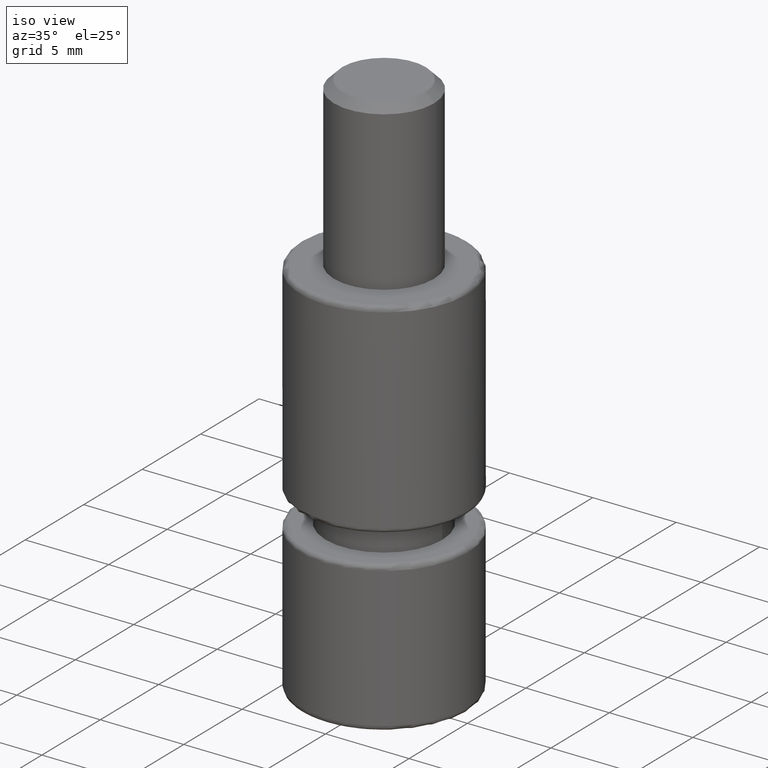
[diagram: clean part render]
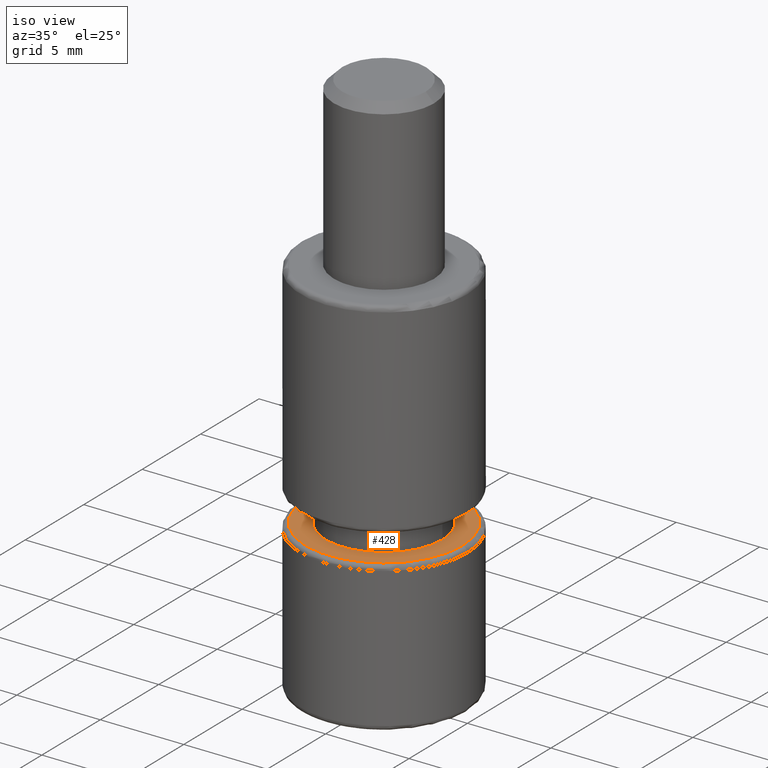
[diagram: same view with one face highlighted and labeled with its STEP entity id]
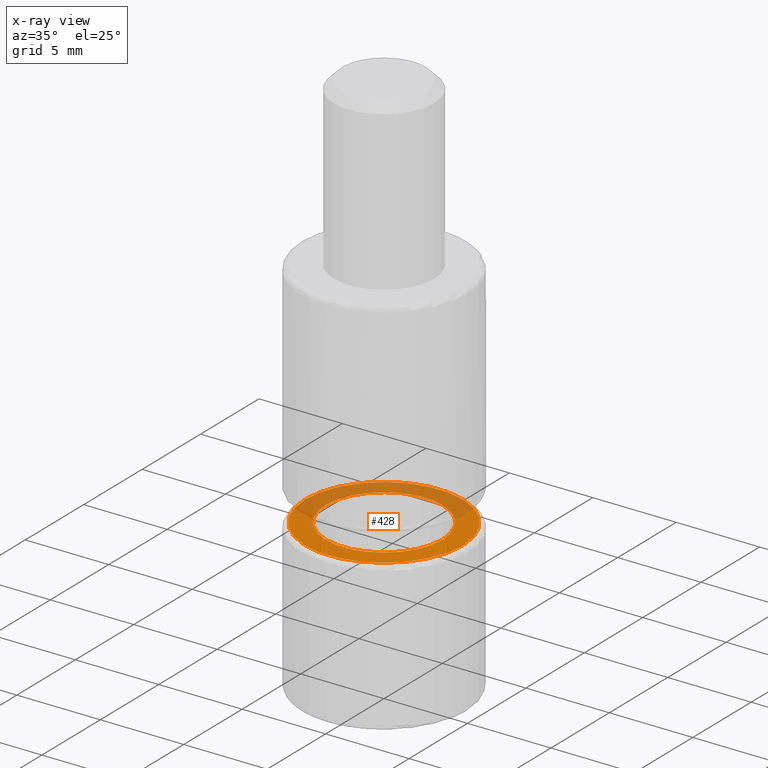
[diagram: x-ray of the same camera — body ghosted, the highlighted face saturated]
A machine part, iso view. The second image highlights one B-rep face of the part: STEP entity #428.
The next image is the same camera in x-ray: the body ghosted, the highlighted face saturated — about 42% of this face is hidden behind the body in this view.
In plain terms, the highlighted planar face has unit normal (0, 0, -1).
Its self-contained STEP definition (entity closure, byte-faithful):
#21=FACE_BOUND('',#102,.T.);
#27=CIRCLE('',#484,4.7);
#28=CIRCLE('',#485,4.7);
#30=CIRCLE('',#488,3.5);
#31=CIRCLE('',#489,3.5);
#54=PLANE('',#487);
#73=FACE_OUTER_BOUND('',#101,.T.);
#101=EDGE_LOOP('',(#334,#335));
#102=EDGE_LOOP('',(#336,#337));
#203=VERTEX_POINT('',#730);
#204=VERTEX_POINT('',#732);
#205=VERTEX_POINT('',#737);
#206=VERTEX_POINT('',#738);
#252=EDGE_CURVE('',#203,#204,#27,.T.);
#253=EDGE_CURVE('',#204,#203,#28,.T.);
#255=EDGE_CURVE('',#205,#206,#30,.T.);
#256=EDGE_CURVE('',#206,#205,#31,.T.);
#334=ORIENTED_EDGE('',*,*,#253,.F.);
#335=ORIENTED_EDGE('',*,*,#252,.F.);
#336=ORIENTED_EDGE('',*,*,#255,.F.);
#337=ORIENTED_EDGE('',*,*,#256,.F.);
#428=ADVANCED_FACE('',(#73,#21),#54,.F.);
#484=AXIS2_PLACEMENT_3D('',#733,#584,#585);
#485=AXIS2_PLACEMENT_3D('',#734,#586,#587);
#487=AXIS2_PLACEMENT_3D('',#736,#590,#591);
#488=AXIS2_PLACEMENT_3D('',#739,#592,#593);
#489=AXIS2_PLACEMENT_3D('',#740,#594,#595);
#584=DIRECTION('center_axis',(0.,0.,-1.));
#585=DIRECTION('ref_axis',(1.,0.,0.));
#586=DIRECTION('center_axis',(0.,0.,-1.));
#587=DIRECTION('ref_axis',(1.,0.,0.));
#590=DIRECTION('center_axis',(0.,0.,-1.));
#591=DIRECTION('ref_axis',(-1.,0.,0.));
#592=DIRECTION('center_axis',(0.,0.,1.));
#593=DIRECTION('ref_axis',(1.,0.,0.));
#594=DIRECTION('center_axis',(0.,0.,1.));
#595=DIRECTION('ref_axis',(1.,0.,0.));
#730=CARTESIAN_POINT('',(4.7,-5.75583995599256E-16,-2.5));
#732=CARTESIAN_POINT('',(-4.7,5.75583995599256E-16,-2.5));
#733=CARTESIAN_POINT('Origin',(0.,0.,-2.5));
#734=CARTESIAN_POINT('Origin',(0.,0.,-2.5));
#736=CARTESIAN_POINT('Origin',(-5.,0.,-2.5));
#737=CARTESIAN_POINT('',(-3.5,0.,-2.5));
#738=CARTESIAN_POINT('',(3.5,4.28626379701574E-16,-2.5));
#739=CARTESIAN_POINT('Origin',(0.,0.,-2.5));
#740=CARTESIAN_POINT('Origin',(0.,0.,-2.5));